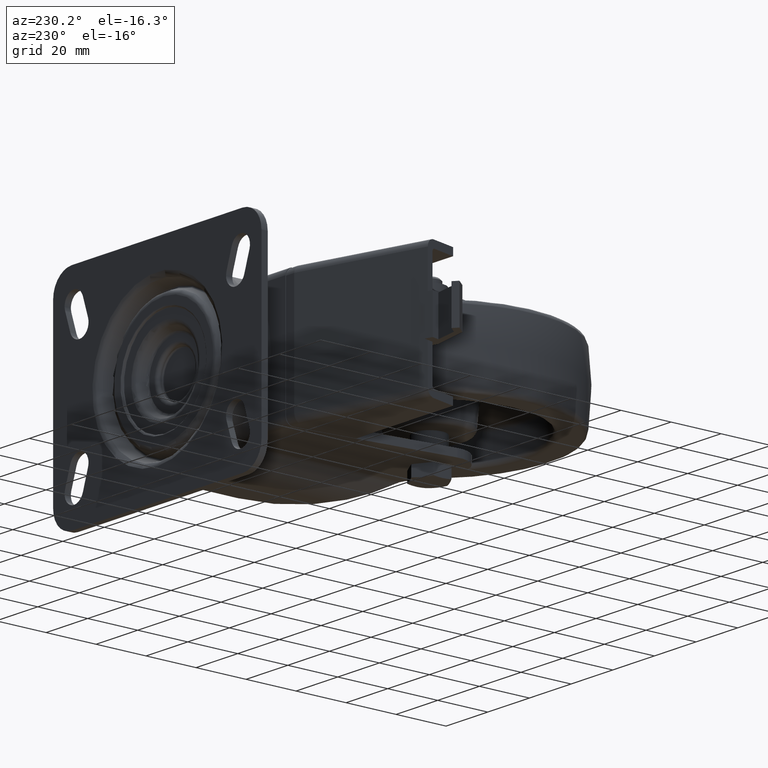
[diagram: clean part render]
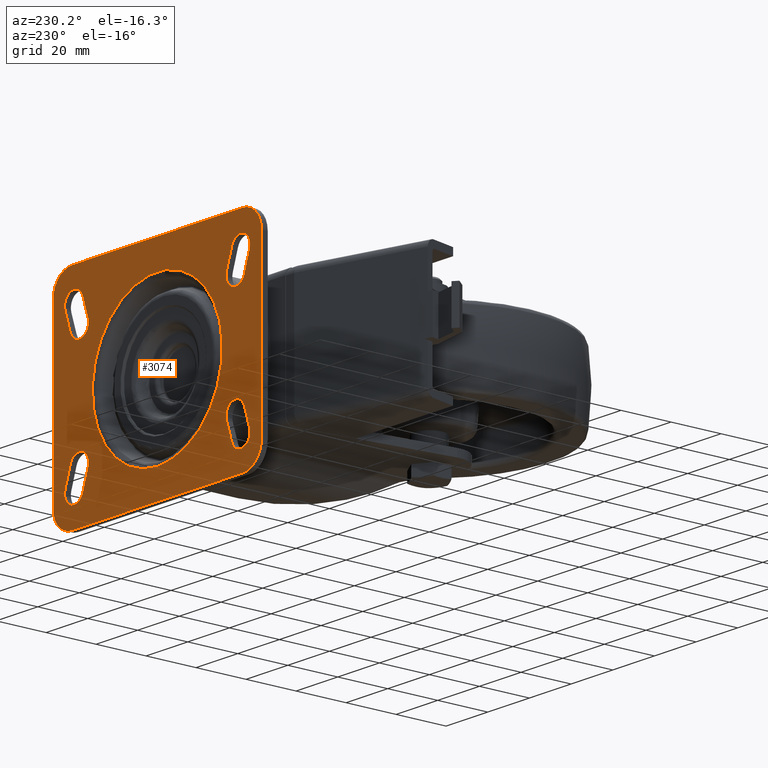
[diagram: same view with one face highlighted and labeled with its STEP entity id]
A machine part, auxiliary view. The second image highlights one B-rep face of the part: STEP entity #3074.
In plain terms, the highlighted planar face has unit normal (0, 1, 0).
Its self-contained STEP definition (entity closure, byte-faithful):
#174=FACE_BOUND('',#484,.T.);
#175=FACE_BOUND('',#485,.T.);
#176=FACE_BOUND('',#486,.T.);
#177=FACE_BOUND('',#487,.T.);
#178=FACE_BOUND('',#488,.T.);
#295=FACE_OUTER_BOUND('',#483,.T.);
#483=EDGE_LOOP('',(#2406,#2407,#2408,#2409,#2410,#2411,#2412,#2413));
#484=EDGE_LOOP('',(#2414,#2415,#2416,#2417));
#485=EDGE_LOOP('',(#2418,#2419,#2420,#2421));
#486=EDGE_LOOP('',(#2422));
#487=EDGE_LOOP('',(#2423,#2424,#2425,#2426));
#488=EDGE_LOOP('',(#2427,#2428,#2429,#2430));
#634=CIRCLE('',#3283,31.175);
#644=CIRCLE('',#3331,4.5);
#646=CIRCLE('',#3335,4.5);
#648=CIRCLE('',#3339,4.5);
#650=CIRCLE('',#3343,4.49999999999999);
#652=CIRCLE('',#3347,4.49999999999999);
#654=CIRCLE('',#3351,4.5);
#656=CIRCLE('',#3355,4.49999999999997);
#658=CIRCLE('',#3359,4.49999999999997);
#660=CIRCLE('',#3363,8.99999999999999);
#662=CIRCLE('',#3367,9.);
#664=CIRCLE('',#3371,9.00000000000001);
#666=CIRCLE('',#3375,8.99999999999999);
#873=LINE('',#5106,#1080);
#876=LINE('',#5115,#1083);
#881=LINE('',#5130,#1088);
#884=LINE('',#5139,#1091);
#889=LINE('',#5154,#1096);
#892=LINE('',#5163,#1099);
#897=LINE('',#5178,#1104);
#900=LINE('',#5187,#1107);
#905=LINE('',#5202,#1112);
#909=LINE('',#5214,#1116);
#913=LINE('',#5226,#1120);
#916=LINE('',#5235,#1123);
#1080=VECTOR('',#3985,7.90569415042095);
#1083=VECTOR('',#3996,7.90569415042095);
#1088=VECTOR('',#4009,7.90569415042095);
#1091=VECTOR('',#4020,7.90569415042095);
#1096=VECTOR('',#4033,7.90569415042095);
#1099=VECTOR('',#4044,7.90569415042095);
#1104=VECTOR('',#4057,7.90569415042104);
#1107=VECTOR('',#4068,7.90569415042104);
#1112=VECTOR('',#4081,82.);
#1116=VECTOR('',#4093,67.);
#1120=VECTOR('',#4105,82.);
#1123=VECTOR('',#4116,67.);
#1269=VERTEX_POINT('',#4960);
#1304=VERTEX_POINT('',#5096);
#1305=VERTEX_POINT('',#5098);
#1307=VERTEX_POINT('',#5104);
#1309=VERTEX_POINT('',#5110);
#1312=VERTEX_POINT('',#5120);
#1313=VERTEX_POINT('',#5122);
#1315=VERTEX_POINT('',#5128);
#1317=VERTEX_POINT('',#5134);
#1320=VERTEX_POINT('',#5144);
#1321=VERTEX_POINT('',#5146);
#1323=VERTEX_POINT('',#5152);
#1325=VERTEX_POINT('',#5158);
#1328=VERTEX_POINT('',#5168);
#1329=VERTEX_POINT('',#5170);
#1331=VERTEX_POINT('',#5176);
#1333=VERTEX_POINT('',#5182);
#1336=VERTEX_POINT('',#5192);
#1337=VERTEX_POINT('',#5194);
#1339=VERTEX_POINT('',#5200);
#1341=VERTEX_POINT('',#5206);
#1343=VERTEX_POINT('',#5212);
#1345=VERTEX_POINT('',#5218);
#1347=VERTEX_POINT('',#5224);
#1349=VERTEX_POINT('',#5230);
#1590=EDGE_CURVE('',#1269,#1269,#634,.T.);
#1654=EDGE_CURVE('',#1304,#1305,#644,.T.);
#1658=EDGE_CURVE('',#1307,#1304,#873,.T.);
#1661=EDGE_CURVE('',#1309,#1307,#646,.T.);
#1663=EDGE_CURVE('',#1305,#1309,#876,.T.);
#1666=EDGE_CURVE('',#1312,#1313,#648,.T.);
#1670=EDGE_CURVE('',#1315,#1312,#881,.T.);
#1673=EDGE_CURVE('',#1317,#1315,#650,.T.);
#1675=EDGE_CURVE('',#1313,#1317,#884,.T.);
#1678=EDGE_CURVE('',#1320,#1321,#652,.T.);
#1682=EDGE_CURVE('',#1323,#1320,#889,.T.);
#1685=EDGE_CURVE('',#1325,#1323,#654,.T.);
#1687=EDGE_CURVE('',#1321,#1325,#892,.T.);
#1690=EDGE_CURVE('',#1328,#1329,#656,.T.);
#1694=EDGE_CURVE('',#1331,#1328,#897,.T.);
#1697=EDGE_CURVE('',#1333,#1331,#658,.T.);
#1699=EDGE_CURVE('',#1329,#1333,#900,.T.);
#1702=EDGE_CURVE('',#1337,#1336,#660,.T.);
#1706=EDGE_CURVE('',#1336,#1339,#905,.T.);
#1709=EDGE_CURVE('',#1339,#1341,#662,.T.);
#1712=EDGE_CURVE('',#1341,#1343,#909,.T.);
#1715=EDGE_CURVE('',#1343,#1345,#664,.T.);
#1718=EDGE_CURVE('',#1345,#1347,#913,.T.);
#1721=EDGE_CURVE('',#1347,#1349,#666,.T.);
#1723=EDGE_CURVE('',#1349,#1337,#916,.T.);
#2406=ORIENTED_EDGE('',*,*,#1723,.T.);
#2407=ORIENTED_EDGE('',*,*,#1702,.T.);
#2408=ORIENTED_EDGE('',*,*,#1706,.T.);
#2409=ORIENTED_EDGE('',*,*,#1709,.T.);
#2410=ORIENTED_EDGE('',*,*,#1712,.T.);
#2411=ORIENTED_EDGE('',*,*,#1715,.T.);
#2412=ORIENTED_EDGE('',*,*,#1718,.T.);
#2413=ORIENTED_EDGE('',*,*,#1721,.T.);
#2414=ORIENTED_EDGE('',*,*,#1699,.F.);
#2415=ORIENTED_EDGE('',*,*,#1690,.F.);
#2416=ORIENTED_EDGE('',*,*,#1694,.F.);
#2417=ORIENTED_EDGE('',*,*,#1697,.F.);
#2418=ORIENTED_EDGE('',*,*,#1687,.F.);
#2419=ORIENTED_EDGE('',*,*,#1678,.F.);
#2420=ORIENTED_EDGE('',*,*,#1682,.F.);
#2421=ORIENTED_EDGE('',*,*,#1685,.F.);
#2422=ORIENTED_EDGE('',*,*,#1590,.F.);
#2423=ORIENTED_EDGE('',*,*,#1675,.F.);
#2424=ORIENTED_EDGE('',*,*,#1666,.F.);
#2425=ORIENTED_EDGE('',*,*,#1670,.F.);
#2426=ORIENTED_EDGE('',*,*,#1673,.F.);
#2427=ORIENTED_EDGE('',*,*,#1663,.F.);
#2428=ORIENTED_EDGE('',*,*,#1654,.F.);
#2429=ORIENTED_EDGE('',*,*,#1658,.F.);
#2430=ORIENTED_EDGE('',*,*,#1661,.F.);
#2768=PLANE('',#3378);
#3074=ADVANCED_FACE('',(#295,#174,#175,#176,#177,#178),#2768,.T.);
#3283=AXIS2_PLACEMENT_3D('',#4962,#3829,#3830);
#3331=AXIS2_PLACEMENT_3D('',#5099,#3978,#3979);
#3335=AXIS2_PLACEMENT_3D('',#5112,#3991,#3992);
#3339=AXIS2_PLACEMENT_3D('',#5123,#4002,#4003);
#3343=AXIS2_PLACEMENT_3D('',#5136,#4015,#4016);
#3347=AXIS2_PLACEMENT_3D('',#5147,#4026,#4027);
#3351=AXIS2_PLACEMENT_3D('',#5160,#4039,#4040);
#3355=AXIS2_PLACEMENT_3D('',#5171,#4050,#4051);
#3359=AXIS2_PLACEMENT_3D('',#5184,#4063,#4064);
#3363=AXIS2_PLACEMENT_3D('',#5195,#4074,#4075);
#3367=AXIS2_PLACEMENT_3D('',#5208,#4087,#4088);
#3371=AXIS2_PLACEMENT_3D('',#5220,#4099,#4100);
#3375=AXIS2_PLACEMENT_3D('',#5232,#4111,#4112);
#3378=AXIS2_PLACEMENT_3D('',#5237,#4119,#4120);
#3829=DIRECTION('center_axis',(0.,1.,0.));
#3830=DIRECTION('ref_axis',(1.,0.,0.));
#3978=DIRECTION('center_axis',(0.,1.,0.));
#3979=DIRECTION('ref_axis',(-0.948683298050514,0.,0.316227766016837));
#3985=DIRECTION('',(0.316227766016838,0.,0.948683298050514));
#3991=DIRECTION('center_axis',(0.,1.,0.));
#3992=DIRECTION('ref_axis',(0.948683298050514,0.,-0.316227766016838));
#3996=DIRECTION('',(-0.316227766016838,0.,-0.948683298050514));
#4002=DIRECTION('center_axis',(0.,1.,0.));
#4003=DIRECTION('ref_axis',(0.948683298050514,0.,0.316227766016838));
#4009=DIRECTION('',(0.316227766016838,0.,-0.948683298050514));
#4015=DIRECTION('center_axis',(0.,1.,0.));
#4016=DIRECTION('ref_axis',(-0.948683298050514,0.,-0.316227766016838));
#4020=DIRECTION('',(-0.316227766016838,0.,0.948683298050514));
#4026=DIRECTION('center_axis',(0.,1.,0.));
#4027=DIRECTION('ref_axis',(0.948683298050514,0.,0.316227766016838));
#4033=DIRECTION('',(0.316227766016837,0.,-0.948683298050514));
#4039=DIRECTION('center_axis',(0.,1.,0.));
#4040=DIRECTION('ref_axis',(-0.948683298050514,0.,-0.316227766016838));
#4044=DIRECTION('',(-0.316227766016836,0.,0.948683298050515));
#4050=DIRECTION('center_axis',(0.,1.,0.));
#4051=DIRECTION('ref_axis',(-0.948683298050516,0.,0.316227766016831));
#4057=DIRECTION('',(0.316227766016836,0.,0.948683298050514));
#4063=DIRECTION('center_axis',(0.,1.,0.));
#4064=DIRECTION('ref_axis',(0.948683298050516,0.,-0.316227766016831));
#4068=DIRECTION('',(-0.316227766016836,0.,-0.948683298050515));
#4074=DIRECTION('center_axis',(0.,1.,0.));
#4075=DIRECTION('ref_axis',(-1.,0.,0.));
#4081=DIRECTION('',(1.,0.,0.));
#4087=DIRECTION('center_axis',(0.,1.,0.));
#4088=DIRECTION('ref_axis',(0.,0.,1.));
#4093=DIRECTION('',(0.,0.,-1.));
#4099=DIRECTION('center_axis',(0.,1.,0.));
#4100=DIRECTION('ref_axis',(1.,0.,0.));
#4105=DIRECTION('',(-1.,0.,0.));
#4111=DIRECTION('center_axis',(0.,1.,0.));
#4112=DIRECTION('ref_axis',(0.,0.,-1.));
#4116=DIRECTION('',(0.,0.,1.));
#4119=DIRECTION('center_axis',(0.,1.,0.));
#4120=DIRECTION('ref_axis',(0.,0.,1.));
#4960=CARTESIAN_POINT('',(37.,78.,-31.175));
#4962=CARTESIAN_POINT('Origin',(37.,78.,0.));
#5096=CARTESIAN_POINT('',(-4.76907484122731,78.,-21.0769750529242));
#5098=CARTESIAN_POINT('',(3.76907484122731,78.,-23.9230249470758));
#5099=CARTESIAN_POINT('Origin',(-0.499999999999999,78.,-22.5));
#5104=CARTESIAN_POINT('',(-7.26907484122731,78.,-28.5769750529242));
#5106=CARTESIAN_POINT('',(-7.26907484122731,78.,-28.5769750529242));
#5110=CARTESIAN_POINT('',(1.26907484122731,78.,-31.4230249470758));
#5112=CARTESIAN_POINT('Origin',(-3.,78.,-30.));
#5115=CARTESIAN_POINT('',(3.76907484122731,78.,-23.9230249470758));
#5120=CARTESIAN_POINT('',(3.76907484122731,78.,23.9230249470758));
#5122=CARTESIAN_POINT('',(-4.76907484122731,78.,21.0769750529242));
#5123=CARTESIAN_POINT('Origin',(-0.499999999999999,78.,22.5));
#5128=CARTESIAN_POINT('',(1.26907484122731,78.,31.4230249470758));
#5130=CARTESIAN_POINT('',(1.26907484122731,78.,31.4230249470758));
#5134=CARTESIAN_POINT('',(-7.26907484122731,78.,28.5769750529242));
#5136=CARTESIAN_POINT('Origin',(-3.,78.,30.));
#5139=CARTESIAN_POINT('',(-4.76907484122731,78.,21.0769750529242));
#5144=CARTESIAN_POINT('',(81.2690748412273,78.,-28.5769750529242));
#5146=CARTESIAN_POINT('',(72.7309251587727,78.,-31.4230249470758));
#5147=CARTESIAN_POINT('Origin',(77.,78.,-30.));
#5152=CARTESIAN_POINT('',(78.7690748412273,78.,-21.0769750529242));
#5154=CARTESIAN_POINT('',(78.7690748412273,78.,-21.0769750529242));
#5158=CARTESIAN_POINT('',(70.2309251587727,78.,-23.9230249470758));
#5160=CARTESIAN_POINT('Origin',(74.5,78.,-22.5));
#5163=CARTESIAN_POINT('',(72.7309251587727,78.,-31.4230249470758));
#5168=CARTESIAN_POINT('',(72.7309251587727,78.,31.4230249470758));
#5170=CARTESIAN_POINT('',(81.2690748412273,78.,28.5769750529243));
#5171=CARTESIAN_POINT('Origin',(77.,78.,30.));
#5176=CARTESIAN_POINT('',(70.2309251587727,78.,23.9230249470757));
#5178=CARTESIAN_POINT('',(70.2309251587727,78.,23.9230249470757));
#5182=CARTESIAN_POINT('',(78.7690748412273,78.,21.0769750529242));
#5184=CARTESIAN_POINT('Origin',(74.5,78.,22.5));
#5187=CARTESIAN_POINT('',(81.2690748412273,78.,28.5769750529243));
#5192=CARTESIAN_POINT('',(-4.,78.,42.5));
#5194=CARTESIAN_POINT('',(-13.,78.,33.5));
#5195=CARTESIAN_POINT('Origin',(-4.00000000000001,78.,33.5));
#5200=CARTESIAN_POINT('',(78.,78.,42.5));
#5202=CARTESIAN_POINT('',(-4.,78.,42.5));
#5206=CARTESIAN_POINT('',(87.,78.,33.5));
#5208=CARTESIAN_POINT('Origin',(78.,78.,33.5));
#5212=CARTESIAN_POINT('',(87.,78.,-33.5));
#5214=CARTESIAN_POINT('',(87.,78.,33.5));
#5218=CARTESIAN_POINT('',(78.,78.,-42.5));
#5220=CARTESIAN_POINT('Origin',(78.,78.,-33.5));
#5224=CARTESIAN_POINT('',(-4.,78.,-42.5));
#5226=CARTESIAN_POINT('',(78.,78.,-42.5));
#5230=CARTESIAN_POINT('',(-13.,78.,-33.5));
#5232=CARTESIAN_POINT('Origin',(-4.,78.,-33.5));
#5235=CARTESIAN_POINT('',(-13.,78.,-33.5));
#5237=CARTESIAN_POINT('Origin',(0.,78.,0.));